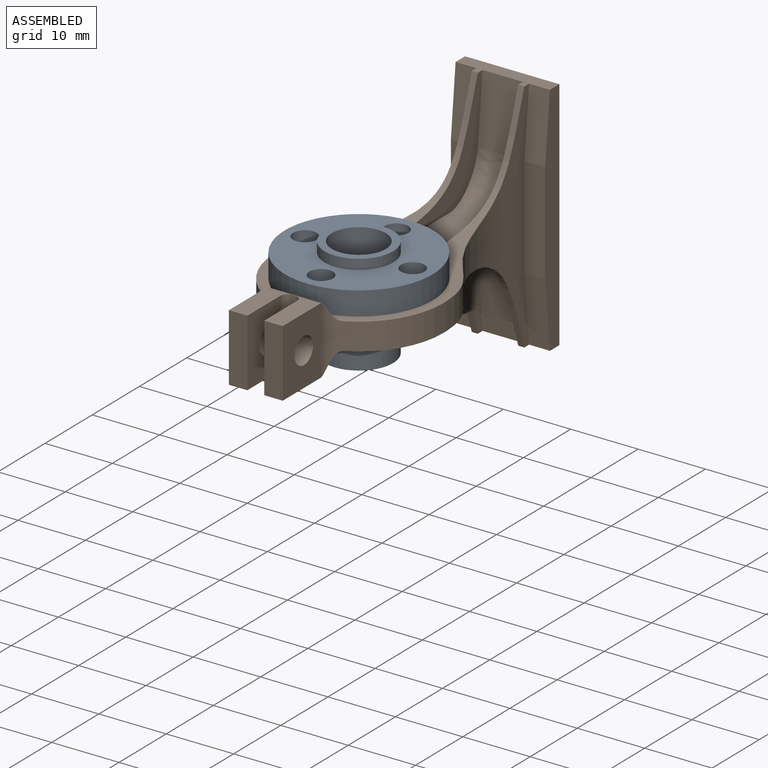
[diagram: assembled view]
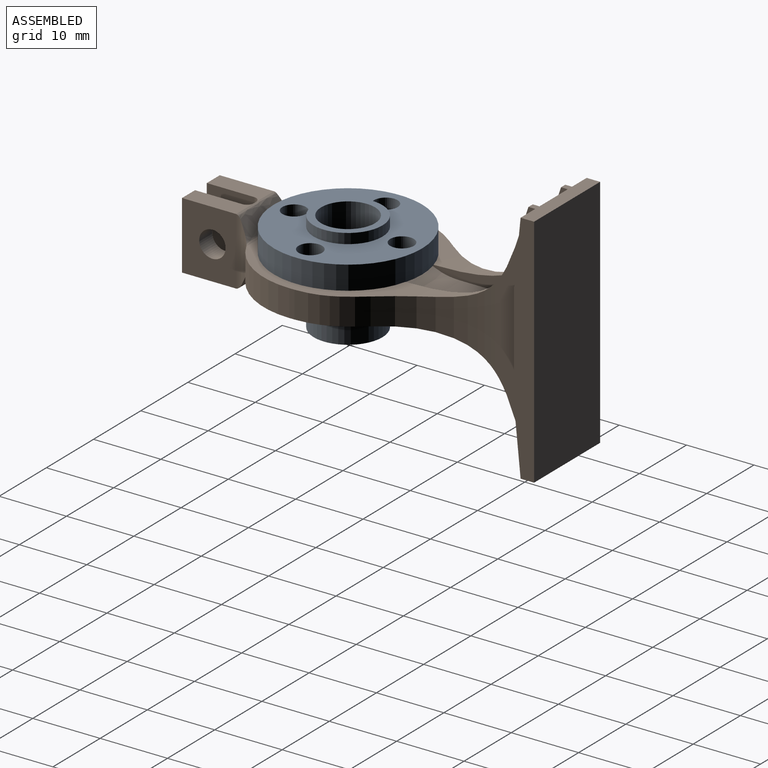
[diagram: assembled view, second angle]
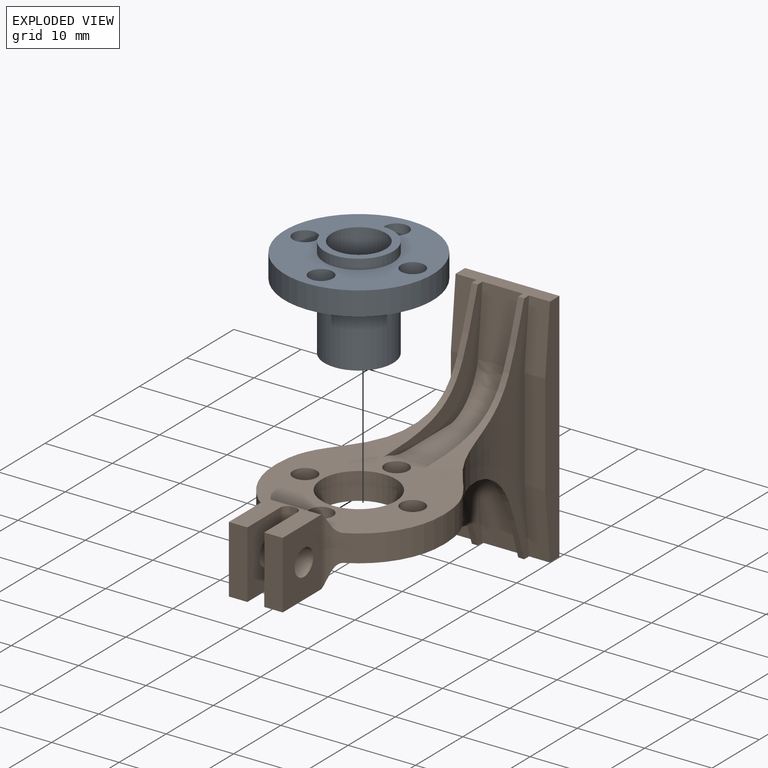
[diagram: exploded view]
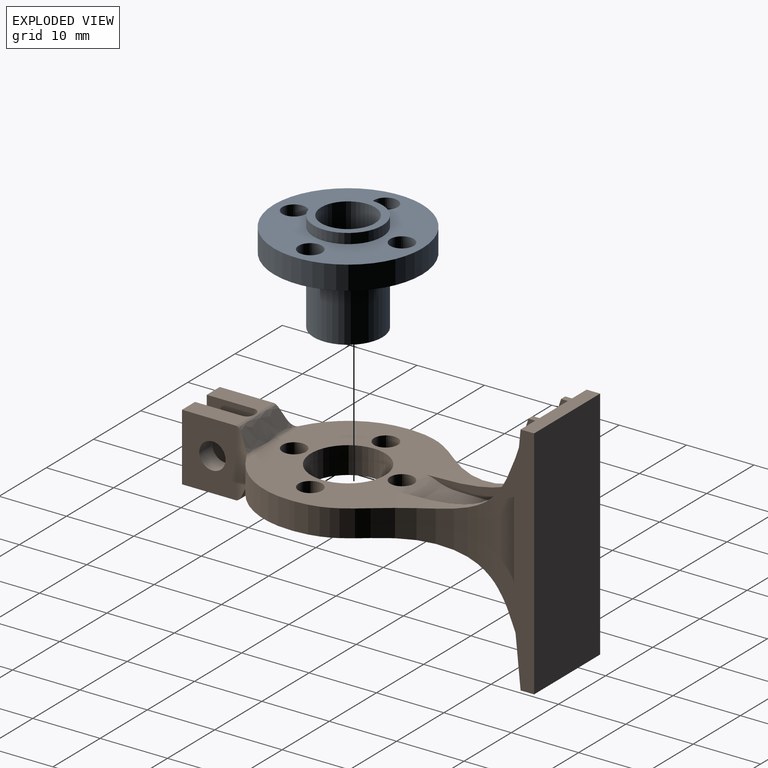
[diagram: exploded view, second angle]
ASSEMBLY  parts=2 mates=2
PART A: 12 faces, bbox 22x15x22 mm
  f0: plane 10.2x10.2mm, normal (0,-1,0), area 31.4mm2, adj f1,f7
  f1: cylinder r=4mm len=15mm, axis (0,-1,0), area 377mm2, adj f0,f2
  f2: plane 10.2x10.2mm, normal (0,1,0), area 31.4mm2, adj f1,f3
  f3: cylinder r=5.1mm len=10.2mm, axis (0,-1,0), area 320.4mm2, adj f2,f4
  f4: plane 22x22mm, normal (0,1,0), area 259.9mm2, adj f3,f5,f8,f9,f10,f11
  f5: cylinder r=11mm len=22mm, axis (0,-1,0), area 241.9mm2, adj f4,f6
  f6: plane 22x22mm, normal (0,-1,0), area 259.9mm2, adj f5,f7,f8,f9,f10,f11
  f7: cylinder r=5.1mm len=10.2mm, axis (0,-1,0), area 48.1mm2, adj f0,f6
  f8: cylinder r=1.75mm len=3.5mm, axis (0,-1,0), area 38.5mm2, adj f4,f6
  f9: cylinder r=1.75mm len=3.5mm, axis (0,-1,0), area 38.5mm2, adj f4,f6
  f10: cylinder r=1.75mm len=3.5mm, axis (0,-1,0), area 38.5mm2, adj f4,f6
  f11: cylinder r=1.75mm len=3.5mm, axis (0,-1,0), area 38.5mm2, adj f4,f6
PART B: 61 faces, bbox 25.5x54.3x35 mm
  f0: plane 14x3mm, normal (0,0,-1), area 29.8mm2, adj f3,f4,f8,f9,f12,f13,f14,f45
  f1: extruded ~20x15.5mm, area 47.5mm2, adj f7,f8,f10,f19,f60
  f2: extruded ~20x15.5mm, area 47.5mm2, adj f6,f9,f10,f19,f59
  f3: extruded ~20x15.5mm, area 47.5mm2, adj f0,f6,f9,f20,f53
  f4: extruded ~20x15.5mm, area 47.5mm2, adj f0,f7,f8,f20,f54
  f5: cylinder r=1.75mm len=4mm, axis (0,0,-1), area 44mm2, adj f19,f20,f52,f55
  f6: extruded ~24.21x12.98mm, area 135.7mm2, adj f2,f3,f9,f16,f19,f20
  f7: extruded ~24.21x12.98mm, area 135.7mm2, adj f1,f4,f8,f19,f20,f25
  f8: plane 35x5.68mm, normal (1,0,0), area 111.4mm2, adj f0,f1,f4,f7,f10,f11,f44,f45
  f9: plane 35x5.68mm, normal (-1,0,0), area 111.4mm2, adj f0,f2,f3,f6,f10,f15,f43,f46
  f10: plane 14x3mm, normal (0,0,1), area 29.8mm2, adj f1,f2,f8,f9,f12,f13,f14,f43
  f11: plane 15x3.1mm, normal (0,-1,0), area 46.5mm2, adj f8,f12,f44,f45
  f12: plane 35x3mm, normal (1,0,0), area 95mm2, adj f0,f10,f11,f13,f44,f45
  f13: plane 35x14mm, normal (0,1,0), area 490mm2, adj f0,f10,f12,f14
  f14: plane 35x3mm, normal (-1,0,0), area 95mm2, adj f0,f10,f13,f15,f43,f46
  f15: plane 15x3.1mm, normal (0,-1,0), area 46.5mm2, adj f9,f14,f43,f46
  f16: plane 4x0.79mm, normal (-1,0,0), area 3.1mm2, adj f6,f19,f20,f41
  f17: plane 8.01x3.75mm, normal (0,0,1), area 22.3mm2, adj f21,f36,f37,f39,f42
  f18: plane 8.01x3.75mm, normal (0,0,-1), area 22.3mm2, adj f24,f36,f37,f39,f42
  f19: plane 25.47x20.93mm, normal (0,0,1), area 318mm2, adj f1,f2,f5,f6,f7,f16,f21,f25
  f20: plane 25.47x20.93mm, normal (0,0,-1), area 318mm2, adj f3,f4,f5,f6,f7,f16,f24,f25
  f21: extruded ~11.29x3mm, area 36.9mm2, adj f17,f19,f22,f31,f35,f40
  f22: plane 8.01x3.75mm, normal (0,0,1), area 22.3mm2, adj f21,f32,f33,f34,f38
  f23: plane 8.01x3.75mm, normal (0,0,-1), area 22.3mm2, adj f24,f32,f33,f34,f38
  f24: extruded ~11.29x3mm, area 36.9mm2, adj f18,f20,f23,f31,f35,f40
  f25: plane 4x0.79mm, normal (1,0,0), area 3.1mm2, adj f7,f19,f20,f30
  f26: cylinder r=1.75mm len=4mm, axis (0,0,-1), area 44mm2, adj f19,f20
  f27: cylinder r=1.75mm len=4mm, axis (0,0,-1), area 44mm2, adj f19,f20
  f28: cylinder r=1.75mm len=4mm, axis (0,0,-1), area 44mm2, adj f19,f20
  f29: cylinder r=5.5mm len=11mm, axis (0,0,-1), area 138.2mm2, adj f19,f20
  f30: cylinder r=12.5mm len=11.15mm, axis (0,0,-1), area 55.1mm2, adj f19,f20,f25,f31
  f31: cylinder r=3mm len=10mm, axis (0,0,-1), area 23.1mm2, adj f21,f24,f30,f32
  f32: plane 10x8.01mm, normal (1,0,0), area 68.2mm2, adj f22,f23,f31,f38,f48
  f33: plane 10x7.01mm, normal (-1,0,0), area 58.2mm2, adj f22,f23,f34,f38,f48
  f34: cylinder r=1mm len=10mm, axis (0,0,-1), area 15.7mm2, adj f22,f23,f33,f35
  f35: plane 10x0.5mm, normal (0,-1,0), area 5mm2, adj f21,f24,f34,f36
  f36: cylinder r=1mm len=10mm, axis (0,0,-1), area 15.7mm2, adj f17,f18,f35,f37
  f37: plane 10x7.01mm, normal (1,0,0), area 58.2mm2, adj f17,f18,f36,f42,f47
  f38: plane 10x2.75mm, normal (0,-1,0), area 27.5mm2, adj f22,f23,f32,f33
  f39: plane 10x8.01mm, normal (-1,0,0), area 68.2mm2, adj f17,f18,f40,f42,f47
  f40: cylinder r=3mm len=10mm, axis (0,0,-1), area 23.1mm2, adj f21,f24,f39,f41
  f41: cylinder r=12.5mm len=11.15mm, axis (0,0,-1), area 55.1mm2, adj f16,f19,f20,f40
  f42: plane 10x2.75mm, normal (0,-1,0), area 27.5mm2, adj f17,f18,f37,f39
  f43: plane 10x3.1mm, normal (0,-1,0.1), area 31.2mm2, adj f9,f10,f14,f15
  f44: plane 10x3.1mm, normal (0,-1,0.1), area 31.2mm2, adj f8,f10,f11,f12
  f45: plane 10x3.1mm, normal (0,-1,-0.1), area 31.2mm2, adj f0,f8,f11,f12
  f46: plane 10x3.1mm, normal (0,-1,-0.1), area 31.2mm2, adj f0,f9,f14,f15
  f47: cylinder r=1.95mm len=3.9mm, axis (1,0,0), area 33.7mm2, adj f37,f39
  f48: cylinder r=1.95mm len=3.9mm, axis (1,0,0), area 33.7mm2, adj f32,f33
  f49: plane 10x6mm, normal (0,-1,-0.1), area 60.3mm2, adj f0,f50,f53,f54
  f50: extruded ~6.5x6.09mm, area 57.7mm2, adj f49,f51,f53,f54
  f51: plane 8.74x6mm, normal (0,0,-1), area 52.4mm2, adj f50,f52,f53,f54
  f52: extruded ~6x5.18mm, area 31.9mm2, adj f5,f20,f51,f53,f54
  f53: plane 21x16.5mm, normal (1,0,0), area 69.4mm2, adj f0,f3,f49,f50,f51,f52
  f54: plane 21x16.5mm, normal (-1,0,0), area 69.4mm2, adj f0,f4,f49,f50,f51,f52
  f55: extruded ~6x5.18mm, area 31.9mm2, adj f5,f19,f56,f59,f60
  f56: plane 8.74x6mm, normal (0,0,1), area 52.4mm2, adj f55,f57,f59,f60
  f57: extruded ~6.5x6.09mm, area 57.7mm2, adj f56,f58,f59,f60
  f58: plane 10x6mm, normal (0,-1,0.1), area 60.3mm2, adj f10,f57,f59,f60
  f59: plane 21x16.5mm, normal (1,0,0), area 69.4mm2, adj f2,f10,f55,f56,f57,f58
  f60: plane 21x16.5mm, normal (-1,0,0), area 69.4mm2, adj f1,f10,f55,f56,f57,f58
PLACE A rot(axis=(-1,0,0),90deg) t=(-5.75,-5.23,4.49)mm
PLACE B t=(-5.75,-5.23,-20.01)mm
MATE cylindrical A.f11 <-> B.f5  axis (0,0,-1) through (-5.75,2.77,-0.51)mm
MATE planar A.f8 <-> B.f19  axis (0,0,-1) through (2.25,-5.23,-0.51)mm
